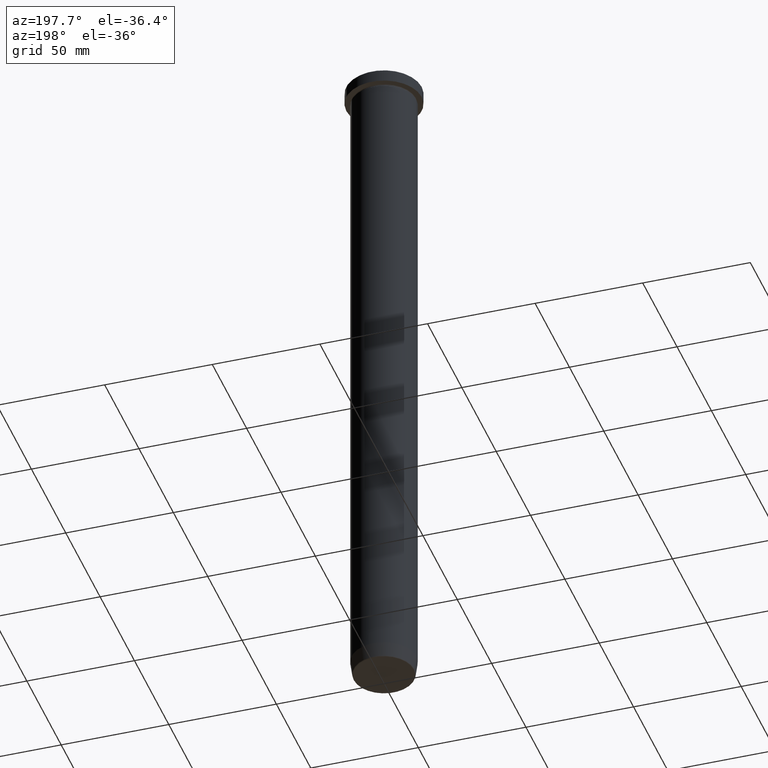
[diagram: clean part render]
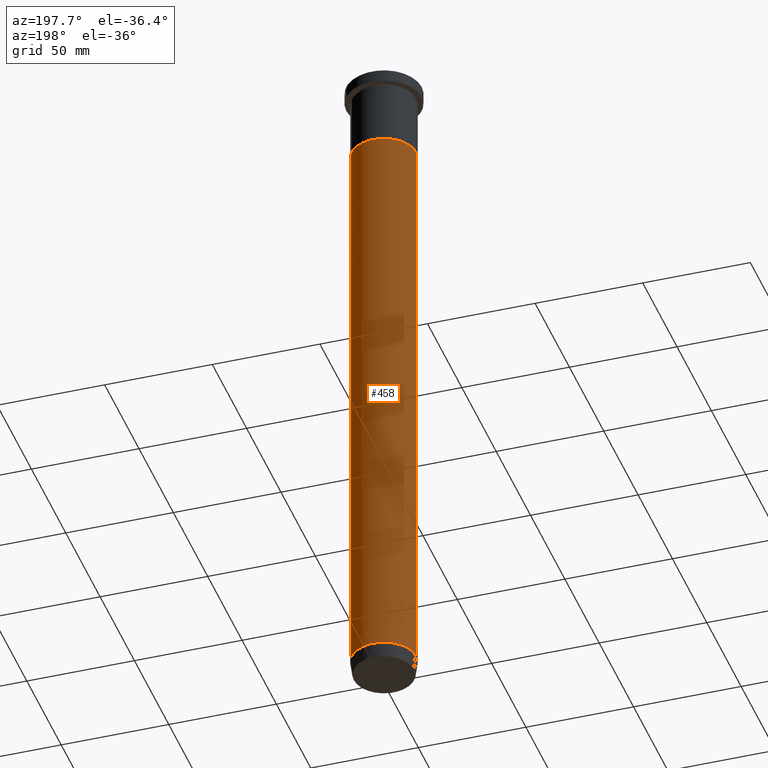
[diagram: same view with one face highlighted and labeled with its STEP entity id]
A machine part, auxiliary view. The second image highlights one B-rep face of the part: STEP entity #458.
In plain terms, the highlighted cylindrical surface (edge-blend (fillet) strip) has radius 15 mm, axis along (-0, -0, 1).
Its self-contained STEP definition (entity closure, byte-faithful):
#7 = FACE_OUTER_BOUND ( 'NONE', #569, .T. ) ;
#14 = DIRECTION ( 'NONE',  ( -0.000000000000000000, -0.000000000000000000, 1.000000000000000000 ) ) ;
#18 = DIRECTION ( 'NONE',  ( -0.000000000000000000, -0.000000000000000000, 1.000000000000000000 ) ) ;
#48 = AXIS2_PLACEMENT_3D ( 'NONE', #462, #242, #554 ) ;
#65 = CARTESIAN_POINT ( 'NONE',  ( 15.00000000000000000, 0.000000000000000000, 0.000000000000000000 ) ) ;
#100 = DIRECTION ( 'NONE',  ( 1.000000000000000000, 0.000000000000000000, 0.000000000000000000 ) ) ;
#102 = ORIENTED_EDGE ( 'NONE', *, *, #407, .F. ) ;
#107 = CARTESIAN_POINT ( 'NONE',  ( 15.00000000000000000, 0.000000000000000000, -36.00000000000000000 ) ) ;
#108 = EDGE_CURVE ( 'NONE', #236, #166, #273, .T. ) ;
#110 = CARTESIAN_POINT ( 'NONE',  ( -15.00000000000000000, 1.836970198721029589E-15, -312.9999999999999432 ) ) ;
#166 = VERTEX_POINT ( 'NONE', #110 ) ;
#173 = VERTEX_POINT ( 'NONE', #107 ) ;
#174 = DIRECTION ( 'NONE',  ( -0.000000000000000000, -0.000000000000000000, 1.000000000000000000 ) ) ;
#185 = EDGE_CURVE ( 'NONE', #166, #312, #200, .T. ) ;
#193 = ORIENTED_EDGE ( 'NONE', *, *, #185, .T. ) ;
#200 = LINE ( 'NONE', #376, #321 ) ;
#236 = VERTEX_POINT ( 'NONE', #249 ) ;
#240 = CYLINDRICAL_SURFACE ( 'NONE', #48, 15.00000000000000000 ) ;
#242 = DIRECTION ( 'NONE',  ( -0.000000000000000000, -0.000000000000000000, 1.000000000000000000 ) ) ;
#249 = CARTESIAN_POINT ( 'NONE',  ( 15.00000000000000000, 0.000000000000000000, -312.9999999999999432 ) ) ;
#261 = EDGE_CURVE ( 'NONE', #236, #173, #582, .T. ) ;
#273 = CIRCLE ( 'NONE', #593, 15.00000000000000000 ) ;
#301 = ORIENTED_EDGE ( 'NONE', *, *, #108, .T. ) ;
#312 = VERTEX_POINT ( 'NONE', #324 ) ;
#313 = CARTESIAN_POINT ( 'NONE',  ( 0.000000000000000000, 0.000000000000000000, -36.00000000000000000 ) ) ;
#321 = VECTOR ( 'NONE', #18, 1000.000000000000000 ) ;
#324 = CARTESIAN_POINT ( 'NONE',  ( -15.00000000000000000, 1.836970198721029589E-15, -36.00000000000000000 ) ) ;
#345 = AXIS2_PLACEMENT_3D ( 'NONE', #313, #174, #591 ) ;
#376 = CARTESIAN_POINT ( 'NONE',  ( -15.00000000000000000, 1.836970198721029589E-15, 0.000000000000000000 ) ) ;
#383 = VECTOR ( 'NONE', #483, 1000.000000000000000 ) ;
#396 = ORIENTED_EDGE ( 'NONE', *, *, #261, .F. ) ;
#407 = EDGE_CURVE ( 'NONE', #173, #312, #527, .T. ) ;
#458 = ADVANCED_FACE ( 'NONE', ( #7 ), #240, .T. ) ;
#462 = CARTESIAN_POINT ( 'NONE',  ( 0.000000000000000000, 0.000000000000000000, 0.000000000000000000 ) ) ;
#465 = CARTESIAN_POINT ( 'NONE',  ( 0.000000000000000000, 0.000000000000000000, -312.9999999999999432 ) ) ;
#483 = DIRECTION ( 'NONE',  ( -0.000000000000000000, -0.000000000000000000, 1.000000000000000000 ) ) ;
#527 = CIRCLE ( 'NONE', #345, 15.00000000000000000 ) ;
#554 = DIRECTION ( 'NONE',  ( 1.000000000000000000, 0.000000000000000000, 0.000000000000000000 ) ) ;
#569 = EDGE_LOOP ( 'NONE', ( #301, #193, #102, #396 ) ) ;
#582 = LINE ( 'NONE', #65, #383 ) ;
#591 = DIRECTION ( 'NONE',  ( 1.000000000000000000, 0.000000000000000000, 0.000000000000000000 ) ) ;
#593 = AXIS2_PLACEMENT_3D ( 'NONE', #465, #14, #100 ) ;